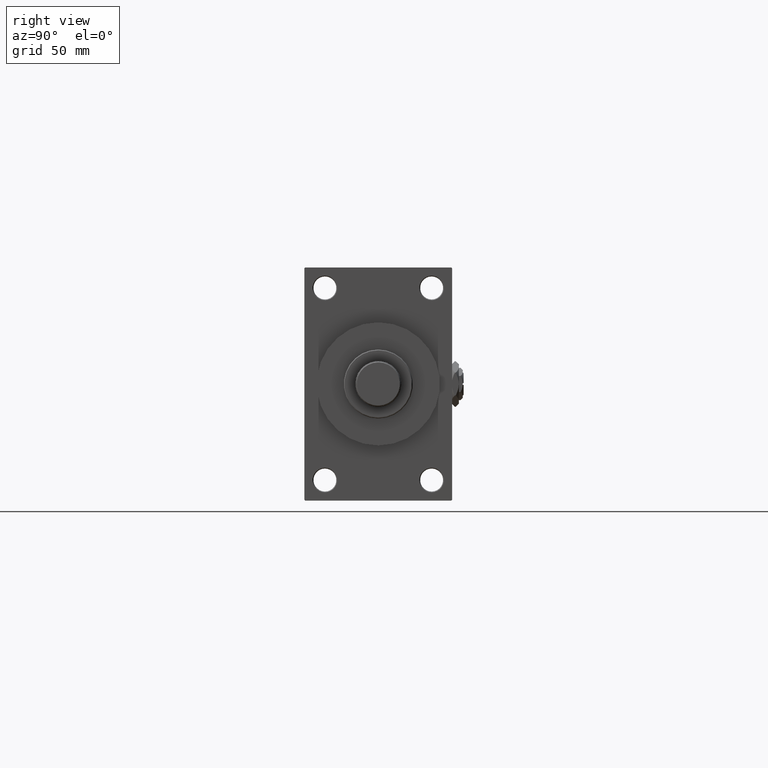
[diagram: clean part render]
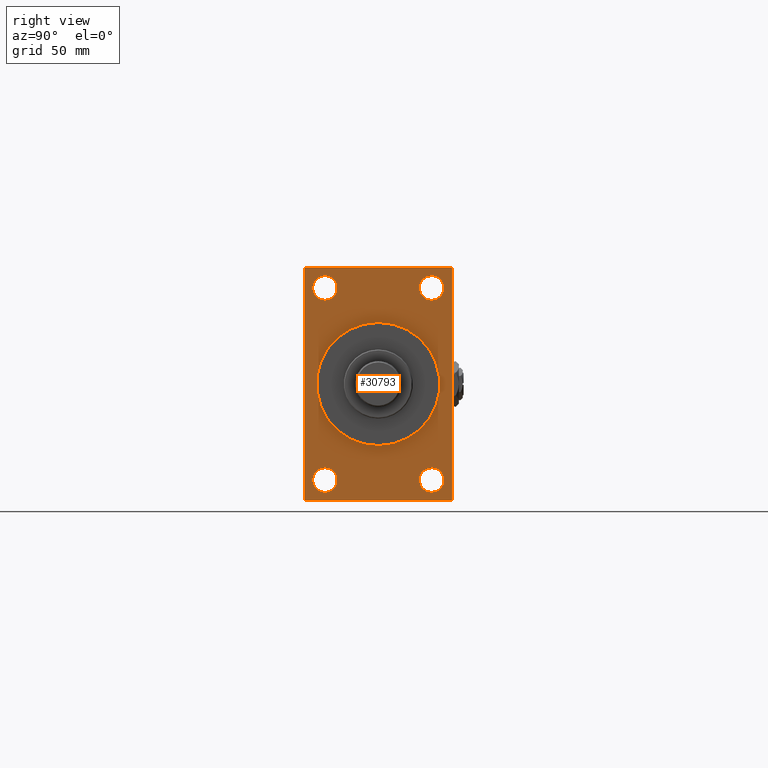
[diagram: same view with one face highlighted and labeled with its STEP entity id]
A machine part, right view. The second image highlights one B-rep face of the part: STEP entity #30793.
In plain terms, the highlighted planar face has unit normal (-1, 0, 0).
Its self-contained STEP definition (entity closure, byte-faithful):
#31 = EDGE_CURVE ( 'NONE', #13062, #16349, #19977, .T. ) ;
#127 = AXIS2_PLACEMENT_3D ( 'NONE', #24861, #4992, #5484 ) ;
#129 = CARTESIAN_POINT ( 'NONE',  ( 319.9999999999999432, -32.50000000000000000, -66.00000000000004263 ) ) ;
#150 = CARTESIAN_POINT ( 'NONE',  ( 319.9999999999999432, 45.00000000000001421, -70.49999999999997158 ) ) ;
#950 = DIRECTION ( 'NONE',  ( 0.000000000000000000, -4.886545002751570165E-17, -1.000000000000000000 ) ) ;
#1238 = DIRECTION ( 'NONE',  ( 0.000000000000000000, 0.000000000000000000, 1.000000000000000000 ) ) ;
#1648 = DIRECTION ( 'NONE',  ( -1.000000000000000000, 0.000000000000000000, -0.000000000000000000 ) ) ;
#1749 = VERTEX_POINT ( 'NONE', #16730 ) ;
#2246 = CIRCLE ( 'NONE', #27957, 7.500000000000055067 ) ;
#2428 = CARTESIAN_POINT ( 'NONE',  ( 319.9999999999999432, 32.50000000000000711, -58.50000000000000000 ) ) ;
#2538 = CIRCLE ( 'NONE', #127, 7.500000000000047962 ) ;
#3020 = VECTOR ( 'NONE', #950, 1000.000000000000000 ) ;
#3032 = EDGE_CURVE ( 'NONE', #1749, #36671, #14434, .T. ) ;
#3065 = CIRCLE ( 'NONE', #6245, 7.500000000000062172 ) ;
#3111 = CARTESIAN_POINT ( 'NONE',  ( 319.9999999999999432, -32.50000000000000000, 58.50000000000000711 ) ) ;
#3493 = EDGE_LOOP ( 'NONE', ( #28451, #19646 ) ) ;
#4140 = AXIS2_PLACEMENT_3D ( 'NONE', #17072, #31682, #1238 ) ;
#4487 = CARTESIAN_POINT ( 'NONE',  ( 319.9999999999999432, 44.50000000000001421, -70.99999999999998579 ) ) ;
#4819 = LINE ( 'NONE', #36031, #17946 ) ;
#4992 = DIRECTION ( 'NONE',  ( -1.000000000000000000, 0.000000000000000000, -0.000000000000000000 ) ) ;
#5248 = LINE ( 'NONE', #48022, #36146 ) ;
#5484 = DIRECTION ( 'NONE',  ( 0.000000000000000000, 0.000000000000000000, 1.000000000000000000 ) ) ;
#5889 = VERTEX_POINT ( 'NONE', #10811 ) ;
#6101 = CARTESIAN_POINT ( 'NONE',  ( 319.9999999999999432, -44.99999999999997158, 70.49999999999998579 ) ) ;
#6120 = CARTESIAN_POINT ( 'NONE',  ( 319.9999999999999432, 4.592425496802575156E-15, -37.50000000000000711 ) ) ;
#6245 = AXIS2_PLACEMENT_3D ( 'NONE', #2428, #40675, #36415 ) ;
#6342 = CARTESIAN_POINT ( 'NONE',  ( 319.9999999999999432, -44.99999999999997158, -70.50000000000000000 ) ) ;
#6565 = DIRECTION ( 'NONE',  ( 0.000000000000000000, 0.000000000000000000, -1.000000000000000000 ) ) ;
#6859 = DIRECTION ( 'NONE',  ( -0.000000000000000000, -0.7071067811865426878, -0.7071067811865524577 ) ) ;
#7556 = CARTESIAN_POINT ( 'NONE',  ( 319.9999999999999432, -44.49999999999988631, -71.00000000000000000 ) ) ;
#7947 = EDGE_CURVE ( 'NONE', #19701, #44210, #41908, .T. ) ;
#7975 = EDGE_CURVE ( 'NONE', #16349, #13062, #2538, .T. ) ;
#8320 = DIRECTION ( 'NONE',  ( -1.000000000000000000, 0.000000000000000000, -0.000000000000000000 ) ) ;
#8569 = DIRECTION ( 'NONE',  ( 0.000000000000000000, 0.000000000000000000, 1.000000000000000000 ) ) ;
#8859 = VERTEX_POINT ( 'NONE', #6342 ) ;
#9426 = EDGE_LOOP ( 'NONE', ( #25605, #14107 ) ) ;
#9428 = VERTEX_POINT ( 'NONE', #4487 ) ;
#9977 = EDGE_CURVE ( 'NONE', #26092, #32246, #36378, .T. ) ;
#10383 = LINE ( 'NONE', #6101, #16702 ) ;
#10811 = CARTESIAN_POINT ( 'NONE',  ( 319.9999999999999432, -32.50000000000000000, -50.99999999999992895 ) ) ;
#11049 = FACE_BOUND ( 'NONE', #20356, .T. ) ;
#11363 = EDGE_CURVE ( 'NONE', #32188, #43026, #4819, .T. ) ;
#11863 = CIRCLE ( 'NONE', #23100, 37.50000000000000711 ) ;
#12433 = CARTESIAN_POINT ( 'NONE',  ( 319.9999999999999432, -32.50000000000000000, 50.99999999999996447 ) ) ;
#13062 = VERTEX_POINT ( 'NONE', #38361 ) ;
#13165 = CARTESIAN_POINT ( 'NONE',  ( 319.9999999999999432, 44.49999999999996447, 71.00000000000000000 ) ) ;
#13175 = CARTESIAN_POINT ( 'NONE',  ( 319.9999999999999432, -44.99999999999997158, 70.49999999999998579 ) ) ;
#13478 = AXIS2_PLACEMENT_3D ( 'NONE', #31153, #46508, #37715 ) ;
#13870 = ORIENTED_EDGE ( 'NONE', *, *, #11363, .T. ) ;
#14107 = ORIENTED_EDGE ( 'NONE', *, *, #26177, .F. ) ;
#14434 = CIRCLE ( 'NONE', #31315, 37.50000000000000711 ) ;
#14620 = CARTESIAN_POINT ( 'NONE',  ( 319.9999999999999432, 0.000000000000000000, 0.000000000000000000 ) ) ;
#15814 = FACE_BOUND ( 'NONE', #49502, .T. ) ;
#16043 = CARTESIAN_POINT ( 'NONE',  ( 319.9999999999999432, -32.50000000000000000, -58.49999999999999289 ) ) ;
#16349 = VERTEX_POINT ( 'NONE', #12433 ) ;
#16358 = VERTEX_POINT ( 'NONE', #13175 ) ;
#16702 = VECTOR ( 'NONE', #6859, 1000.000000000000000 ) ;
#16730 = CARTESIAN_POINT ( 'NONE',  ( 319.9999999999999432, 0.000000000000000000, 37.50000000000000711 ) ) ;
#17070 = CIRCLE ( 'NONE', #36362, 7.500000000000055067 ) ;
#17072 = CARTESIAN_POINT ( 'NONE',  ( 319.9999999999999432, 32.50000000000000711, -58.50000000000000000 ) ) ;
#17946 = VECTOR ( 'NONE', #31759, 1000.000000000000000 ) ;
#18145 = CARTESIAN_POINT ( 'NONE',  ( 319.9999999999999432, 0.000000000000000000, 0.000000000000000000 ) ) ;
#18155 = DIRECTION ( 'NONE',  ( 1.000000000000000000, 0.000000000000000000, 0.000000000000000000 ) ) ;
#18379 = ORIENTED_EDGE ( 'NONE', *, *, #43674, .T. ) ;
#18592 = FACE_BOUND ( 'NONE', #9426, .T. ) ;
#19586 = FACE_OUTER_BOUND ( 'NONE', #30086, .T. ) ;
#19646 = ORIENTED_EDGE ( 'NONE', *, *, #31, .T. ) ;
#19701 = VERTEX_POINT ( 'NONE', #47282 ) ;
#19977 = CIRCLE ( 'NONE', #48194, 7.500000000000047962 ) ;
#20356 = EDGE_LOOP ( 'NONE', ( #32879, #37733 ) ) ;
#20623 = VERTEX_POINT ( 'NONE', #40197 ) ;
#21178 = ORIENTED_EDGE ( 'NONE', *, *, #42127, .F. ) ;
#21592 = VECTOR ( 'NONE', #25323, 1000.000000000000000 ) ;
#21737 = EDGE_CURVE ( 'NONE', #43026, #20623, #32899, .T. ) ;
#21808 = DIRECTION ( 'NONE',  ( -0.000000000000000000, 0.7071067811865376918, 0.7071067811865574537 ) ) ;
#21830 = VECTOR ( 'NONE', #21808, 999.9999999999998863 ) ;
#22061 = CARTESIAN_POINT ( 'NONE',  ( 319.9999999999999432, -44.99999999999997158, 70.99999999999998579 ) ) ;
#22233 = DIRECTION ( 'NONE',  ( 0.000000000000000000, 0.000000000000000000, 1.000000000000000000 ) ) ;
#22859 = PLANE ( 'NONE',  #13478 ) ;
#23100 = AXIS2_PLACEMENT_3D ( 'NONE', #18145, #49074, #32744 ) ;
#23167 = CARTESIAN_POINT ( 'NONE',  ( 319.9999999999999432, 45.00000000000001421, -70.99999999999998579 ) ) ;
#23366 = EDGE_CURVE ( 'NONE', #20623, #16358, #10383, .T. ) ;
#24298 = AXIS2_PLACEMENT_3D ( 'NONE', #29311, #37361, #29064 ) ;
#24859 = EDGE_CURVE ( 'NONE', #33558, #5889, #2246, .T. ) ;
#24861 = CARTESIAN_POINT ( 'NONE',  ( 319.9999999999999432, -32.50000000000000000, 58.50000000000000711 ) ) ;
#25323 = DIRECTION ( 'NONE',  ( 0.000000000000000000, 0.000000000000000000, -1.000000000000000000 ) ) ;
#25605 = ORIENTED_EDGE ( 'NONE', *, *, #3032, .F. ) ;
#26092 = VERTEX_POINT ( 'NONE', #27732 ) ;
#26177 = EDGE_CURVE ( 'NONE', #36671, #1749, #11863, .T. ) ;
#26704 = EDGE_CURVE ( 'NONE', #32188, #42841, #46488, .T. ) ;
#27683 = ORIENTED_EDGE ( 'NONE', *, *, #24859, .T. ) ;
#27732 = CARTESIAN_POINT ( 'NONE',  ( 319.9999999999999432, 32.50000000000000711, 50.99999999999996447 ) ) ;
#27855 = EDGE_CURVE ( 'NONE', #44210, #19701, #3065, .T. ) ;
#27957 = AXIS2_PLACEMENT_3D ( 'NONE', #16043, #31634, #46736 ) ;
#28350 = ORIENTED_EDGE ( 'NONE', *, *, #26704, .F. ) ;
#28451 = ORIENTED_EDGE ( 'NONE', *, *, #7975, .T. ) ;
#28562 = CARTESIAN_POINT ( 'NONE',  ( 319.9999999999999432, 32.50000000000000711, 58.50000000000000711 ) ) ;
#28615 = EDGE_CURVE ( 'NONE', #16358, #8859, #44465, .T. ) ;
#29064 = DIRECTION ( 'NONE',  ( 0.000000000000000000, 0.000000000000000000, 1.000000000000000000 ) ) ;
#29311 = CARTESIAN_POINT ( 'NONE',  ( 319.9999999999999432, 32.50000000000000711, 58.50000000000000711 ) ) ;
#30086 = EDGE_LOOP ( 'NONE', ( #45841, #49549, #21178, #18379, #28350, #13870, #43722, #31176 ) ) ;
#30518 = DIRECTION ( 'NONE',  ( -1.000000000000000000, 0.000000000000000000, -0.000000000000000000 ) ) ;
#30793 = ADVANCED_FACE ( 'NONE', ( #42490, #38699, #11049, #15814, #18592, #19586 ), #22859, .F. ) ;
#31113 = EDGE_LOOP ( 'NONE', ( #27683, #37388 ) ) ;
#31153 = CARTESIAN_POINT ( 'NONE',  ( 319.9999999999999432, 0.000000000000000000, 0.000000000000000000 ) ) ;
#31176 = ORIENTED_EDGE ( 'NONE', *, *, #23366, .T. ) ;
#31315 = AXIS2_PLACEMENT_3D ( 'NONE', #14620, #18155, #6565 ) ;
#31582 = VECTOR ( 'NONE', #38515, 1000.000000000000000 ) ;
#31634 = DIRECTION ( 'NONE',  ( -1.000000000000000000, 0.000000000000000000, -0.000000000000000000 ) ) ;
#31682 = DIRECTION ( 'NONE',  ( -1.000000000000000000, 0.000000000000000000, -0.000000000000000000 ) ) ;
#31720 = CARTESIAN_POINT ( 'NONE',  ( 319.9999999999999432, -32.50000000000000000, -58.49999999999999289 ) ) ;
#31759 = DIRECTION ( 'NONE',  ( 0.000000000000000000, -0.7071067811865867636, 0.7071067811865081598 ) ) ;
#31832 = VERTEX_POINT ( 'NONE', #7556 ) ;
#32188 = VERTEX_POINT ( 'NONE', #42969 ) ;
#32246 = VERTEX_POINT ( 'NONE', #36154 ) ;
#32744 = DIRECTION ( 'NONE',  ( 0.000000000000000000, 0.000000000000000000, -1.000000000000000000 ) ) ;
#32879 = ORIENTED_EDGE ( 'NONE', *, *, #7947, .T. ) ;
#32896 = LINE ( 'NONE', #42121, #21830 ) ;
#32899 = LINE ( 'NONE', #40206, #47943 ) ;
#33558 = VERTEX_POINT ( 'NONE', #129 ) ;
#34519 = EDGE_CURVE ( 'NONE', #32246, #26092, #37754, .T. ) ;
#34987 = EDGE_CURVE ( 'NONE', #8859, #31832, #5248, .T. ) ;
#35914 = CARTESIAN_POINT ( 'NONE',  ( 319.9999999999999432, 45.00000000000002132, 71.00000000000000000 ) ) ;
#36031 = CARTESIAN_POINT ( 'NONE',  ( 319.9999999999999432, 44.49999999999996447, 71.00000000000000000 ) ) ;
#36146 = VECTOR ( 'NONE', #36201, 1000.000000000000114 ) ;
#36154 = CARTESIAN_POINT ( 'NONE',  ( 319.9999999999999432, 32.50000000000000711, 66.00000000000005684 ) ) ;
#36201 = DIRECTION ( 'NONE',  ( 0.000000000000000000, 0.7071067811865965336, -0.7071067811864985009 ) ) ;
#36362 = AXIS2_PLACEMENT_3D ( 'NONE', #31720, #8320, #8569 ) ;
#36378 = CIRCLE ( 'NONE', #24298, 7.500000000000047962 ) ;
#36415 = DIRECTION ( 'NONE',  ( 0.000000000000000000, 0.000000000000000000, 1.000000000000000000 ) ) ;
#36671 = VERTEX_POINT ( 'NONE', #6120 ) ;
#36725 = ORIENTED_EDGE ( 'NONE', *, *, #9977, .T. ) ;
#37361 = DIRECTION ( 'NONE',  ( -1.000000000000000000, 0.000000000000000000, -0.000000000000000000 ) ) ;
#37388 = ORIENTED_EDGE ( 'NONE', *, *, #41350, .T. ) ;
#37715 = DIRECTION ( 'NONE',  ( -0.000000000000000000, 0.000000000000000000, 1.000000000000000000 ) ) ;
#37733 = ORIENTED_EDGE ( 'NONE', *, *, #27855, .T. ) ;
#37754 = CIRCLE ( 'NONE', #49780, 7.500000000000047962 ) ;
#38361 = CARTESIAN_POINT ( 'NONE',  ( 319.9999999999999432, -32.50000000000000000, 66.00000000000005684 ) ) ;
#38515 = DIRECTION ( 'NONE',  ( 0.000000000000000000, -1.000000000000000000, -1.541976423090495633E-16 ) ) ;
#38699 = FACE_BOUND ( 'NONE', #31113, .T. ) ;
#38726 = ORIENTED_EDGE ( 'NONE', *, *, #34519, .T. ) ;
#40139 = DIRECTION ( 'NONE',  ( 0.000000000000000000, 0.000000000000000000, 1.000000000000000000 ) ) ;
#40197 = CARTESIAN_POINT ( 'NONE',  ( 319.9999999999999432, -44.49999999999995026, 70.99999999999998579 ) ) ;
#40206 = CARTESIAN_POINT ( 'NONE',  ( 319.9999999999999432, 45.00000000000002132, 71.00000000000000000 ) ) ;
#40675 = DIRECTION ( 'NONE',  ( -1.000000000000000000, 0.000000000000000000, -0.000000000000000000 ) ) ;
#41350 = EDGE_CURVE ( 'NONE', #5889, #33558, #17070, .T. ) ;
#41908 = CIRCLE ( 'NONE', #4140, 7.500000000000062172 ) ;
#42121 = CARTESIAN_POINT ( 'NONE',  ( 319.9999999999999432, 45.00000000000001421, -70.49999999999997158 ) ) ;
#42127 = EDGE_CURVE ( 'NONE', #9428, #31832, #45093, .T. ) ;
#42490 = FACE_BOUND ( 'NONE', #3493, .T. ) ;
#42841 = VERTEX_POINT ( 'NONE', #150 ) ;
#42969 = CARTESIAN_POINT ( 'NONE',  ( 319.9999999999999432, 45.00000000000002132, 70.50000000000000000 ) ) ;
#43026 = VERTEX_POINT ( 'NONE', #13165 ) ;
#43674 = EDGE_CURVE ( 'NONE', #9428, #42841, #32896, .T. ) ;
#43722 = ORIENTED_EDGE ( 'NONE', *, *, #21737, .T. ) ;
#44210 = VERTEX_POINT ( 'NONE', #45784 ) ;
#44465 = LINE ( 'NONE', #22061, #21592 ) ;
#45093 = LINE ( 'NONE', #23167, #31582 ) ;
#45784 = CARTESIAN_POINT ( 'NONE',  ( 319.9999999999999432, 32.50000000000000711, -50.99999999999993605 ) ) ;
#45841 = ORIENTED_EDGE ( 'NONE', *, *, #28615, .T. ) ;
#46488 = LINE ( 'NONE', #35914, #3020 ) ;
#46508 = DIRECTION ( 'NONE',  ( -1.000000000000000000, 0.000000000000000000, -0.000000000000000000 ) ) ;
#46736 = DIRECTION ( 'NONE',  ( 0.000000000000000000, 0.000000000000000000, 1.000000000000000000 ) ) ;
#47282 = CARTESIAN_POINT ( 'NONE',  ( 319.9999999999999432, 32.50000000000000711, -66.00000000000005684 ) ) ;
#47943 = VECTOR ( 'NONE', #48241, 1000.000000000000000 ) ;
#48022 = CARTESIAN_POINT ( 'NONE',  ( 319.9999999999999432, -44.49999999999991473, -71.00000000000000000 ) ) ;
#48194 = AXIS2_PLACEMENT_3D ( 'NONE', #3111, #30518, #22233 ) ;
#48241 = DIRECTION ( 'NONE',  ( 0.000000000000000000, -1.000000000000000000, -1.541976423090495387E-16 ) ) ;
#49074 = DIRECTION ( 'NONE',  ( 1.000000000000000000, 0.000000000000000000, 0.000000000000000000 ) ) ;
#49502 = EDGE_LOOP ( 'NONE', ( #36725, #38726 ) ) ;
#49549 = ORIENTED_EDGE ( 'NONE', *, *, #34987, .T. ) ;
#49780 = AXIS2_PLACEMENT_3D ( 'NONE', #28562, #1648, #40139 ) ;